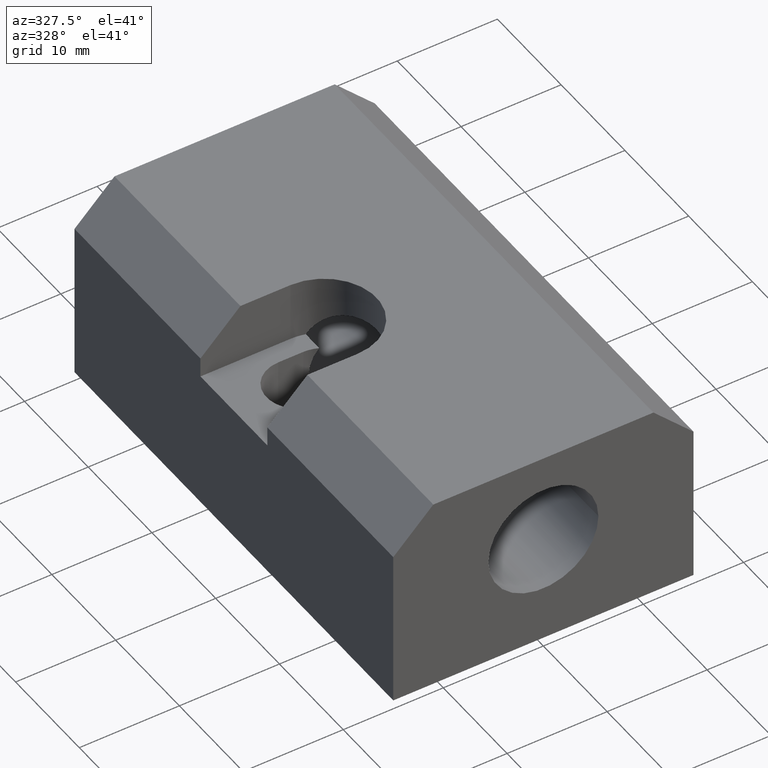
[diagram: clean part render]
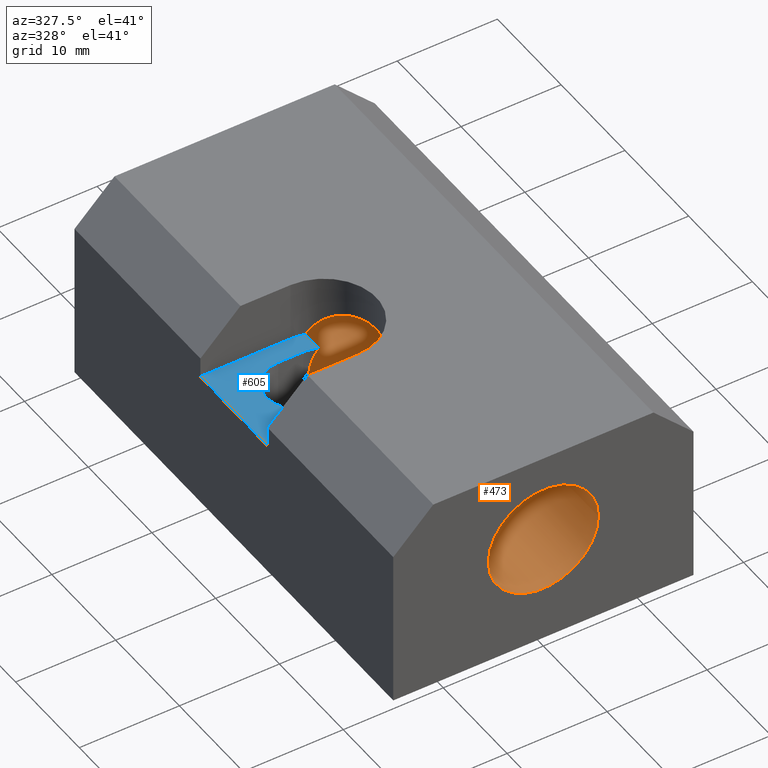
[diagram: same view with the hole feature highlighted: cylindrical wall and planar end face, labeled with their STEP entity ids]
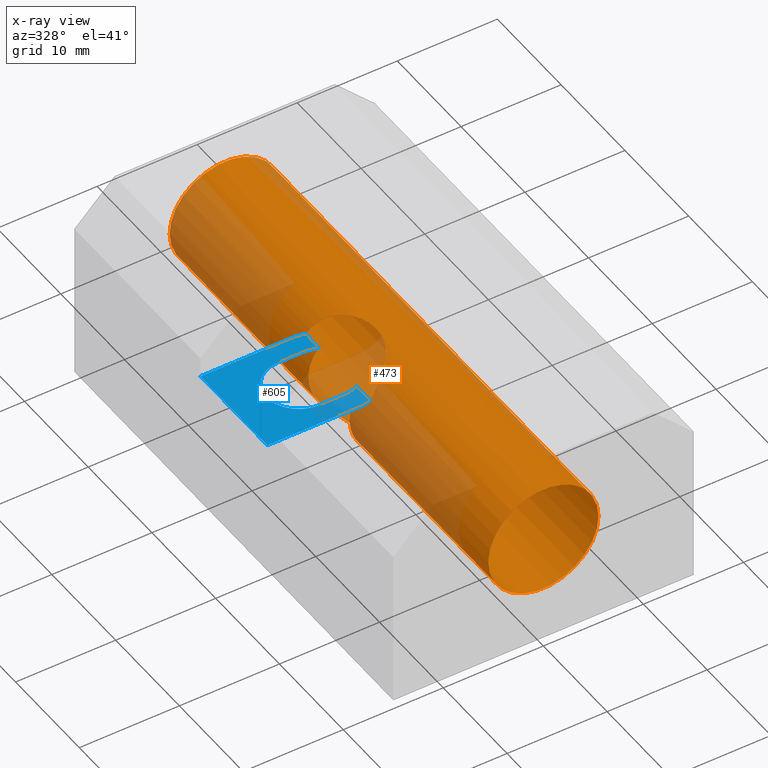
[diagram: x-ray of the same camera — body ghosted, the hole faces saturated]
A machine part, auxiliary view. The highlighted faces form one hole feature of diameter 11 mm: the cylindrical wall (entity #473, orange) and its adjacent planar end face (entity #605, blue) — they share a circular edge in the B-rep.
The next image is the same camera in x-ray (body ghosted, the hole faces saturated) — the bore reads through the body.
Wall:
#324=CARTESIAN_POINT('',(-5.500000000000227,-0.000000283903717,10.999999999956216));
#325=VERTEX_POINT('',#324);
#326=CARTESIAN_POINT('',(5.499999999999773,-0.000000283903717,10.999999999956216));
#327=VERTEX_POINT('',#326);
#328=CARTESIAN_POINT('',(-2.273737E-013,-0.000000283903717,10.999999999956216));
#329=DIRECTION('',(0.0,1.000000000000000,0.000000025809570));
#330=DIRECTION('',(1.0,0.0,0.0));
#331=AXIS2_PLACEMENT_3D('',#328,#329,#330);
#332=CIRCLE('',#331,5.500000000000000);
#333=EDGE_CURVE('',#325,#327,#332,.T.);
#335=CARTESIAN_POINT('',(-2.273737E-013,-0.000000283903717,10.999999999956216));
#336=DIRECTION('',(0.0,1.000000000000000,0.000000025809570));
#337=DIRECTION('',(1.0,0.0,0.0));
#338=AXIS2_PLACEMENT_3D('',#335,#336,#337);
#339=CIRCLE('',#338,5.500000000000000);
#340=EDGE_CURVE('',#327,#325,#339,.T.);
#358=CARTESIAN_POINT('',(-5.500000000000227,-50.000000283903717,10.999998709477737));
#359=VERTEX_POINT('',#358);
#360=CARTESIAN_POINT('',(5.499999999999773,-50.000000283903709,10.999998709477737));
#361=VERTEX_POINT('',#360);
#362=CARTESIAN_POINT('',(-2.273737E-013,-50.000000283903717,10.999998709477737));
#363=DIRECTION('',(0.0,-1.000000000000000,-0.000000025809570));
#364=DIRECTION('',(1.0,0.0,0.0));
#365=AXIS2_PLACEMENT_3D('',#362,#363,#364);
#366=CIRCLE('',#365,5.500000000000000);
#367=EDGE_CURVE('',#359,#361,#366,.T.);
#369=CARTESIAN_POINT('',(-2.273737E-013,-50.000000283903717,10.999998709477737));
#370=DIRECTION('',(0.0,-1.000000000000000,-0.000000025809570));
#371=DIRECTION('',(1.0,0.0,0.0));
#372=AXIS2_PLACEMENT_3D('',#369,#370,#371);
#373=CIRCLE('',#372,5.500000000000000);
#374=EDGE_CURVE('',#361,#359,#373,.T.);
#379=CARTESIAN_POINT('',(-2.273737E-013,-50.000000283903709,10.999998709477737));
#380=DIRECTION('',(0.0,-1.000000000000000,-0.000000025809570));
#381=DIRECTION('',(1.0,0.0,0.0));
#382=AXIS2_PLACEMENT_3D('',#379,#380,#381);
#383=CYLINDRICAL_SURFACE('',#382,5.500000000000000);
#384=CARTESIAN_POINT('',(5.499999999999773,-50.000000283903709,10.999998709477737));
#385=DIRECTION('',(0.0,1.000000000000000,0.000000025809570));
#386=VECTOR('',#385,50.000000000000007);
#387=LINE('',#384,#386);
#388=EDGE_CURVE('',#361,#327,#387,.T.);
#389=ORIENTED_EDGE('',*,*,#388,.T.);
#390=ORIENTED_EDGE('',*,*,#340,.T.);
#391=ORIENTED_EDGE('',*,*,#333,.T.);
#392=ORIENTED_EDGE('',*,*,#388,.F.);
#393=ORIENTED_EDGE('',*,*,#374,.T.);
#394=ORIENTED_EDGE('',*,*,#367,.T.);
#395=EDGE_LOOP('',(#389,#390,#391,#392,#393,#394));
#396=FACE_OUTER_BOUND('',#395,.T.);
#397=CARTESIAN_POINT('',(-4.609773437501850,-30.062585679708111,13.999997366537329));
#398=VERTEX_POINT('',#397);
#399=CARTESIAN_POINT('',(-4.609773437501850,-19.937415043165885,13.999997627863635));
#400=VERTEX_POINT('',#399);
#401=CARTESIAN_POINT('',(-4.609773437501850,-30.062585679708111,13.999997366537329));
#402=CARTESIAN_POINT('',(-4.513460181953690,-30.036137290510446,14.147991554555574));
#403=CARTESIAN_POINT('',(-4.220790235840020,-29.947418045118955,14.553468269196244));
#404=CARTESIAN_POINT('',(-3.712541596371437,-29.742296238767679,15.085618809378914));
#405=CARTESIAN_POINT('',(-3.114649202484515,-29.402108529464961,15.549017026104437));
#406=CARTESIAN_POINT('',(-2.483759828348276,-28.930618164272921,15.926564549909344));
#407=CARTESIAN_POINT('',(-1.767837856828265,-28.185364174737270,16.228236571129685));
#408=CARTESIAN_POINT('',(-1.150660020495671,-27.140082904808416,16.385668423296934));
#409=CARTESIAN_POINT('',(-0.785689032112060,-25.930406252972858,16.444779878449481));
#410=CARTESIAN_POINT('',(-0.707543327265157,-24.685416119282785,16.453911384761710));
#411=CARTESIAN_POINT('',(-0.918869546949551,-23.525267177270564,16.426312849805626));
#412=CARTESIAN_POINT('',(-1.378038843916933,-22.423870730114388,16.333463462370844));
#413=CARTESIAN_POINT('',(-2.045460668463257,-21.473597313919132,16.131383279137452));
#414=CARTESIAN_POINT('',(-2.944136195870328,-20.682598142708194,15.686867443042757));
#415=CARTESIAN_POINT('',(-3.739292116957159,-20.241241327239621,15.073474904552356));
#416=CARTESIAN_POINT('',(-4.283558660717254,-20.033197983366293,14.468522934388290));
#417=CARTESIAN_POINT('',(-4.523825036563288,-19.961017167324087,14.132065260907851));
#418=CARTESIAN_POINT('',(-4.609773437501850,-19.937415043165885,13.999997627863635));
#419=B_SPLINE_CURVE_WITH_KNOTS('',3,(#401,#402,#403,#404,#405,#406,#407,#408,#409,#410,#411,#412,#413,#414,#415,#416,#417,#418),.UNSPECIFIED.,.F.,.U.,(4,1,1,1,1,1,1,1,1,1,1,1,1,1,1,4),(0.0,0.535903650385525,1.520753748540064,2.277790965733574,3.013580933543508,4.130291299700574,5.480009836771406,6.648909124830340,7.900542887177067,9.195462676804930,10.159924569277472,11.474724584485887,12.695804728975558,13.949183433871301,14.728182024343361,15.206363714230307),.UNSPECIFIED.);
#420=EDGE_CURVE('',#398,#400,#419,.T.);
#421=ORIENTED_EDGE('',*,*,#420,.T.);
#422=CARTESIAN_POINT('',(-4.609773437501829,-22.062353325985043,13.999997573019911));
#423=VERTEX_POINT('',#422);
#424=CARTESIAN_POINT('',(-4.609773437501829,-19.937415043165885,13.999997627863658));
#425=DIRECTION('',(0.0,-1.000000000000000,-0.000000025809569));
#426=VECTOR('',#425,2.124938282819159);
#427=LINE('',#424,#426);
#428=EDGE_CURVE('',#400,#423,#427,.T.);
#429=ORIENTED_EDGE('',*,*,#428,.T.);
#430=CARTESIAN_POINT('',(-4.609773437501829,-27.937647396889101,13.999997421381110));
#431=VERTEX_POINT('',#430);
#432=CARTESIAN_POINT('',(-4.609773437501829,-22.062353325985043,13.999997573019883));
#433=CARTESIAN_POINT('',(-4.788263599702290,-21.977883754783463,13.725731002526103));
#434=CARTESIAN_POINT('',(-5.143091415717805,-21.853931581827435,13.057910030906015));
#435=CARTESIAN_POINT('',(-5.481892480022786,-21.789960051724176,11.883741003853089));
#436=CARTESIAN_POINT('',(-5.532152390129646,-21.783794728983601,10.679934247909458));
#437=CARTESIAN_POINT('',(-5.361502416536013,-21.810851669650617,9.682340472502759));
#438=CARTESIAN_POINT('',(-5.104584866082114,-21.871470117086545,8.907754881217841));
#439=CARTESIAN_POINT('',(-4.725233061583737,-21.996699149038989,8.132663285749189));
#440=CARTESIAN_POINT('',(-4.250203308214360,-22.236048741602421,7.479350807547505));
#441=CARTESIAN_POINT('',(-3.763803473248693,-22.622261942646347,6.977883773550190));
#442=CARTESIAN_POINT('',(-3.387983301695172,-23.035169203226090,6.659368943934666));
#443=CARTESIAN_POINT('',(-3.064811055950969,-23.559206003872809,6.429203958404870));
#444=CARTESIAN_POINT('',(-2.854463167473412,-24.116238130605105,6.297724161624458));
#445=CARTESIAN_POINT('',(-2.746042982614590,-24.705207575910471,6.234481355313889));
#446=CARTESIAN_POINT('',(-2.743873748989699,-25.303082505036954,6.233291118597109));
#447=CARTESIAN_POINT('',(-2.855114406123420,-25.882505453585559,6.297909482004471));
#448=CARTESIAN_POINT('',(-3.062309093043183,-26.427673864180747,6.428483396680903));
#449=CARTESIAN_POINT('',(-3.363310957725517,-26.933452218319552,6.640272782392671));
#450=CARTESIAN_POINT('',(-3.758613139180781,-27.376606610942815,6.970967800990152));
#451=CARTESIAN_POINT('',(-4.161914411719572,-27.693258785675702,7.388499641556123));
#452=CARTESIAN_POINT('',(-4.600024369812992,-27.947281829667791,7.952250867919872));
#453=CARTESIAN_POINT('',(-4.978643072542013,-28.092454490443981,8.610773096467838));
#454=CARTESIAN_POINT('',(-5.269470524391295,-28.169311594800494,9.369971124165360));
#455=CARTESIAN_POINT('',(-5.428881459401609,-28.200016512984540,10.037064194057947));
#456=CARTESIAN_POINT('',(-5.507863046881987,-28.212559226293276,10.733918247193898));
#457=CARTESIAN_POINT('',(-5.499316819321749,-28.211308027075830,11.468826849348588));
#458=CARTESIAN_POINT('',(-5.361797633498142,-28.188868364695690,12.340693738825138));
#459=CARTESIAN_POINT('',(-5.066783908610304,-28.122076912929671,13.209893774435656));
#460=CARTESIAN_POINT('',(-4.762588121235950,-28.009966164969835,13.765183584145134));
#461=CARTESIAN_POINT('',(-4.609773437501829,-27.937647396889101,13.999997421381096));
#462=B_SPLINE_CURVE_WITH_KNOTS('',3,(#432,#433,#434,#435,#436,#437,#438,#439,#440,#441,#442,#443,#444,#445,#446,#447,#448,#449,#450,#451,#452,#453,#454,#455,#456,#457,#458,#459,#460,#461),.UNSPECIFIED.,.F.,.U.,(4,1,1,1,1,1,1,1,1,1,1,1,1,1,1,1,1,1,1,1,1,1,1,1,1,1,1,4),(0.0,1.016023688939245,2.280855082656430,3.645866141126857,4.602173098362558,5.306173924898563,6.094943367063977,7.209333586070347,7.806532107112486,8.478334851399135,9.125123933614480,9.765049062831471,10.295561130368581,10.923540775670309,11.547478261184173,12.065101670802296,12.708673520443966,13.411480095039916,14.089208069448372,14.681341413408253,15.677142517959735,16.393778057929445,17.125160270444688,17.731853751351093,18.494745320622812,19.324616775729037,20.372712758380935,21.242122896570724),.UNSPECIFIED.);
#463=EDGE_CURVE('',#423,#431,#462,.T.);
#464=ORIENTED_EDGE('',*,*,#463,.T.);
#465=CARTESIAN_POINT('',(-4.609773437501829,-27.937647396889101,13.999997421381105));
#466=DIRECTION('',(0.0,-1.000000000000000,-0.000000025809569));
#467=VECTOR('',#466,2.124938282819010);
#468=LINE('',#465,#467);
#469=EDGE_CURVE('',#431,#398,#468,.T.);
#470=ORIENTED_EDGE('',*,*,#469,.T.);
#471=EDGE_LOOP('',(#421,#429,#464,#470));
#472=FACE_BOUND('',#471,.T.);
#473=ADVANCED_FACE('',(#396,#472),#383,.F.);
End face:
#227=CARTESIAN_POINT('',(-14.999999999940201,-30.250000361416291,13.999997361700224));
#228=VERTEX_POINT('',#227);
#235=CARTESIAN_POINT('',(-14.999999999940201,-19.750000361457722,13.999997632700712));
#236=VERTEX_POINT('',#235);
#237=CARTESIAN_POINT('',(-14.999999999940201,-19.750000361457722,13.999997632700712));
#238=DIRECTION('',(0.0,-1.000000000000000,-0.000000025809570));
#239=VECTOR('',#238,10.499999999958572);
#240=LINE('',#237,#239);
#241=EDGE_CURVE('',#236,#228,#240,.T.);
#397=CARTESIAN_POINT('',(-4.609773437501850,-30.062585679708111,13.999997366537329));
#398=VERTEX_POINT('',#397);
#399=CARTESIAN_POINT('',(-4.609773437501850,-19.937415043165885,13.999997627863635));
#400=VERTEX_POINT('',#399);
#422=CARTESIAN_POINT('',(-4.609773437501829,-22.062353325985043,13.999997573019911));
#423=VERTEX_POINT('',#422);
#424=CARTESIAN_POINT('',(-4.609773437501829,-19.937415043165885,13.999997627863658));
#425=DIRECTION('',(0.0,-1.000000000000000,-0.000000025809569));
#426=VECTOR('',#425,2.124938282819159);
#427=LINE('',#424,#426);
#428=EDGE_CURVE('',#400,#423,#427,.T.);
#430=CARTESIAN_POINT('',(-4.609773437501829,-27.937647396889101,13.999997421381110));
#431=VERTEX_POINT('',#430);
#465=CARTESIAN_POINT('',(-4.609773437501829,-27.937647396889101,13.999997421381105));
#466=DIRECTION('',(0.0,-1.000000000000000,-0.000000025809569));
#467=VECTOR('',#466,2.124938282819010);
#468=LINE('',#465,#467);
#469=EDGE_CURVE('',#431,#398,#468,.T.);
#480=CARTESIAN_POINT('',(-5.999999999975856,-30.250000361416284,13.999997361700238));
#481=VERTEX_POINT('',#480);
#488=CARTESIAN_POINT('',(-14.999999999940201,-30.250000361416291,13.999997361700224));
#489=DIRECTION('',(1.0,0.0,0.0));
#490=VECTOR('',#489,8.999999999964345);
#491=LINE('',#488,#490);
#492=EDGE_CURVE('',#228,#481,#491,.T.);
#505=CARTESIAN_POINT('',(-5.999999999976581,-19.750000361457722,13.999997632700740));
#506=VERTEX_POINT('',#505);
#513=CARTESIAN_POINT('',(-5.999999999975856,-25.000000361437003,13.999997497200480));
#514=DIRECTION('',(8.010470E-033,-0.000000025809570,1.000000000000000));
#515=DIRECTION('',(-1.0,-9.183550E-040,8.010470E-033));
#516=AXIS2_PLACEMENT_3D('',#513,#514,#515);
#517=CIRCLE('',#516,5.249999999979286);
#518=EDGE_CURVE('',#400,#506,#517,.T.);
#521=CARTESIAN_POINT('',(-5.999999999975856,-25.000000361437003,13.999997497200480));
#522=DIRECTION('',(8.010470E-033,-0.000000025809570,1.000000000000000));
#523=DIRECTION('',(-1.0,-9.183550E-040,8.010470E-033));
#524=AXIS2_PLACEMENT_3D('',#521,#522,#523);
#525=CIRCLE('',#524,5.249999999979286);
#526=EDGE_CURVE('',#481,#398,#525,.T.);
#540=CARTESIAN_POINT('',(-5.999999999976581,-19.750000361457722,13.999997632700742));
#541=DIRECTION('',(-1.0,0.0,0.0));
#542=VECTOR('',#541,8.999999999963620);
#543=LINE('',#540,#542);
#544=EDGE_CURVE('',#506,#236,#543,.T.);
#550=CARTESIAN_POINT('',(0.675004724426131,-18.699995637009710,13.999997659800911));
#551=DIRECTION('',(-1.614870E-016,-0.000000025809569,1.000000000000000));
#552=DIRECTION('',(-1.0,0.0,0.0));
#553=AXIS2_PLACEMENT_3D('',#550,#551,#552);
#554=PLANE('',#553);
#555=ORIENTED_EDGE('',*,*,#492,.T.);
#556=ORIENTED_EDGE('',*,*,#526,.T.);
#557=ORIENTED_EDGE('',*,*,#469,.F.);
#558=CARTESIAN_POINT('',(-5.999999999976573,-28.250000361423297,13.999997413319377));
#559=VERTEX_POINT('',#558);
#560=CARTESIAN_POINT('',(-5.999999999976573,-25.000000361437078,13.999997497200466));
#561=DIRECTION('',(-1.614870E-016,-0.000000025809565,1.000000000000000));
#562=DIRECTION('',(-6.447783E-025,-1.000000000000000,-0.000000025809565));
#563=AXIS2_PLACEMENT_3D('',#560,#561,#562);
#564=CIRCLE('',#563,3.249999999986223);
#565=EDGE_CURVE('',#559,#431,#564,.T.);
#566=ORIENTED_EDGE('',*,*,#565,.F.);
#567=CARTESIAN_POINT('',(-8.499999999966569,-28.250000361423300,13.999997413319377));
#568=VERTEX_POINT('',#567);
#569=CARTESIAN_POINT('',(-8.499999999966569,-28.250000361423300,13.999997413319377));
#570=DIRECTION('',(1.0,0.0,0.0));
#571=VECTOR('',#570,2.499999999989996);
#572=LINE('',#569,#571);
#573=EDGE_CURVE('',#568,#559,#572,.T.);
#574=ORIENTED_EDGE('',*,*,#573,.F.);
#575=CARTESIAN_POINT('',(-8.499999999966569,-21.750000361450848,13.999997581081587));
#576=VERTEX_POINT('',#575);
#577=CARTESIAN_POINT('',(-8.499999999966569,-25.000000361437074,13.999997497200480));
#578=DIRECTION('',(-1.614870E-016,-0.000000025809569,1.000000000000000));
#579=DIRECTION('',(-1.366428E-016,1.000000000000000,0.000000025809569));
#580=AXIS2_PLACEMENT_3D('',#577,#578,#579);
#581=CIRCLE('',#580,3.249999999986224);
#582=EDGE_CURVE('',#576,#568,#581,.T.);
#583=ORIENTED_EDGE('',*,*,#582,.F.);
#584=CARTESIAN_POINT('',(-5.999999999976573,-21.750000361450848,13.999997581081601));
#585=VERTEX_POINT('',#584);
#586=CARTESIAN_POINT('',(-5.999999999976573,-21.750000361450848,13.999997581081601));
#587=DIRECTION('',(-1.0,0.0,0.0));
#588=VECTOR('',#587,2.499999999989996);
#589=LINE('',#586,#588);
#590=EDGE_CURVE('',#585,#576,#589,.T.);
#591=ORIENTED_EDGE('',*,*,#590,.F.);
#592=CARTESIAN_POINT('',(-5.999999999976573,-25.000000361437078,13.999997497200466));
#593=DIRECTION('',(-1.614870E-016,-0.000000025809565,1.000000000000000));
#594=DIRECTION('',(-6.447783E-025,-1.000000000000000,-0.000000025809565));
#595=AXIS2_PLACEMENT_3D('',#592,#593,#594);
#596=CIRCLE('',#595,3.249999999986223);
#597=EDGE_CURVE('',#423,#585,#596,.T.);
#598=ORIENTED_EDGE('',*,*,#597,.F.);
#599=ORIENTED_EDGE('',*,*,#428,.F.);
#600=ORIENTED_EDGE('',*,*,#518,.T.);
#601=ORIENTED_EDGE('',*,*,#544,.T.);
#602=ORIENTED_EDGE('',*,*,#241,.T.);
#603=EDGE_LOOP('',(#555,#556,#557,#566,#574,#583,#591,#598,#599,#600,#601,#602));
#604=FACE_OUTER_BOUND('',#603,.T.);
#605=ADVANCED_FACE('',(#604),#554,.T.);